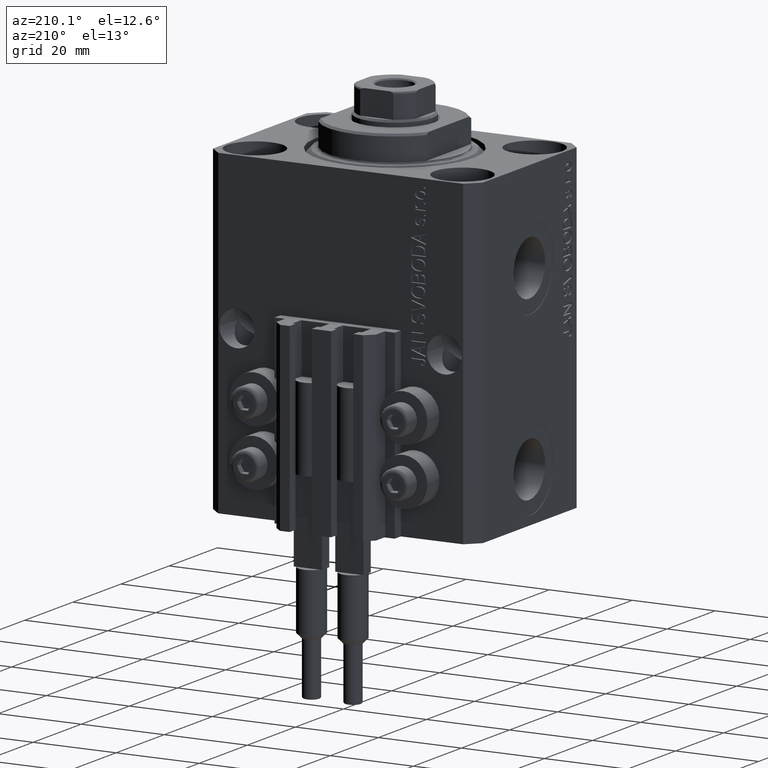
[diagram: clean part render]
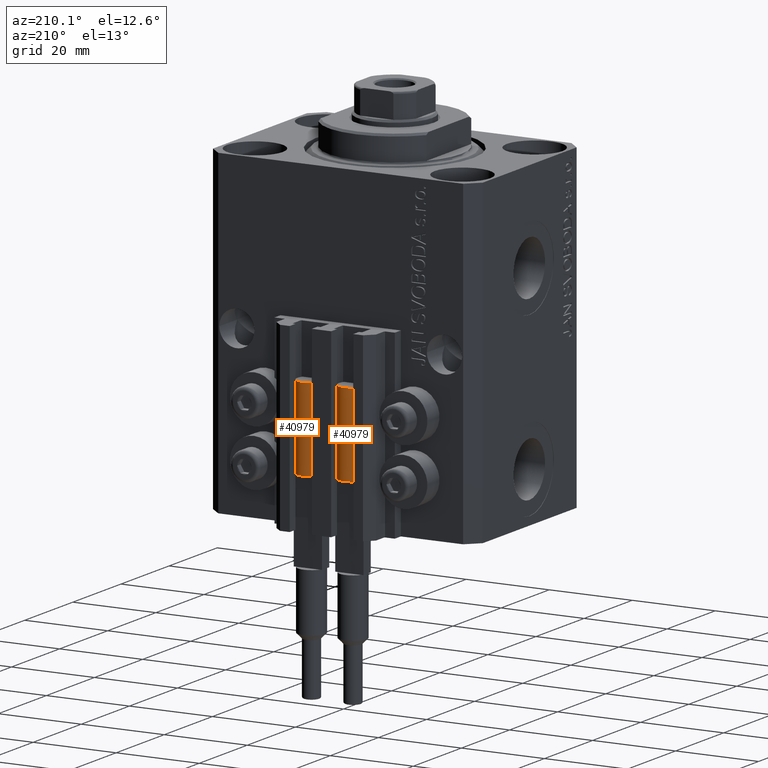
[diagram: same view with one multi-face feature highlighted, each face labeled with its STEP entity id]
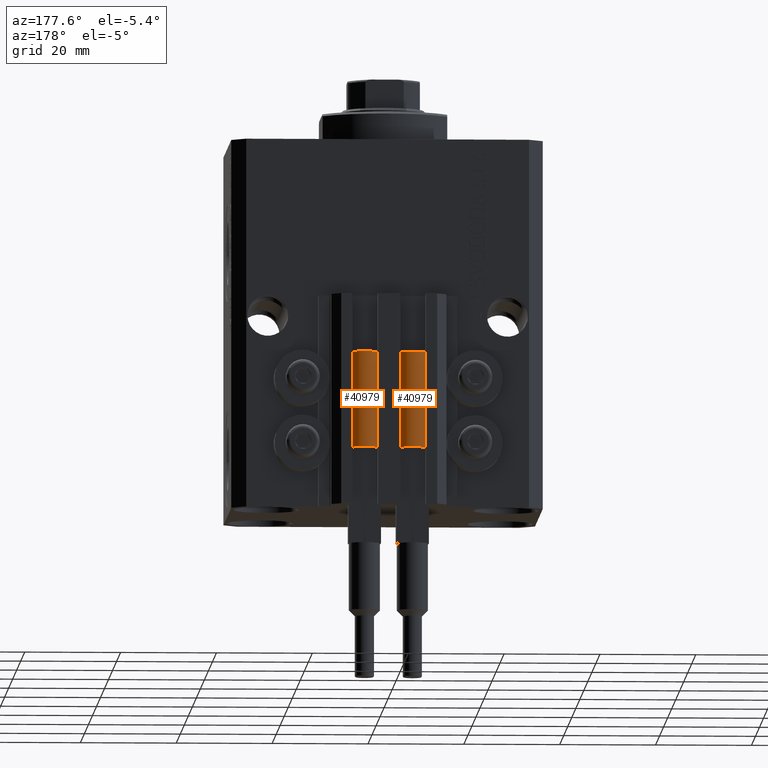
[diagram: same view with one multi-face feature highlighted, each face labeled with its STEP entity id]
A machine part, auxiliary view. The highlighted faces form ONE feature: a constant-radius fillet chain: 2 tangent blend faces with common blend radius 3.4 mm. The faces share edges in the B-rep.
A second angle (auxiliary view) of the same feature is appended — it is thin or edge-on in the first view.
Their STEP definitions:
[1] entity #40979 (Cylinder):
#2190 = VERTEX_POINT ( 'NONE', #8653 ) ;
#3222 = DIRECTION ( 'NONE',  ( 0.000000000000000000, 0.000000000000000000, 1.000000000000000000 ) ) ;
#3467 = DIRECTION ( 'NONE',  ( 0.000000000000000000, 0.000000000000000000, 1.000000000000000000 ) ) ;
#3473 = AXIS2_PLACEMENT_3D ( 'NONE', #17944, #3222, #21880 ) ;
#4143 = VERTEX_POINT ( 'NONE', #38916 ) ;
#5009 = VERTEX_POINT ( 'NONE', #40591 ) ;
#5859 = CIRCLE ( 'NONE', #9740, 3.400000000000000355 ) ;
#6255 = EDGE_CURVE ( 'NONE', #21009, #2190, #31726, .T. ) ;
#6770 = EDGE_CURVE ( 'NONE', #4143, #5009, #5859, .T. ) ;
#6857 = DIRECTION ( 'NONE',  ( -0.000000000000000000, -0.000000000000000000, -1.000000000000000000 ) ) ;
#7351 = AXIS2_PLACEMENT_3D ( 'NONE', #9520, #28652, #21289 ) ;
#7650 = CARTESIAN_POINT ( 'NONE',  ( 0.000000000000000000, 0.000000000000000000, 20.00000000000000000 ) ) ;
#8370 = AXIS2_PLACEMENT_3D ( 'NONE', #36053, #6857, #48062 ) ;
#8498 = DIRECTION ( 'NONE',  ( 1.000000000000000000, 0.000000000000000000, 0.000000000000000000 ) ) ;
#8653 = CARTESIAN_POINT ( 'NONE',  ( 3.051229260478471428, 1.500000000000000000, 20.00000000000000000 ) ) ;
#9520 = CARTESIAN_POINT ( 'NONE',  ( 0.000000000000000000, 0.000000000000000000, 0.000000000000000000 ) ) ;
#9740 = AXIS2_PLACEMENT_3D ( 'NONE', #48492, #44817, #8498 ) ;
#10287 = CYLINDRICAL_SURFACE ( 'NONE', #8370, 3.400000000000000355 ) ;
#10390 = AXIS2_PLACEMENT_3D ( 'NONE', #7650, #3467, #40779 ) ;
#10589 = CARTESIAN_POINT ( 'NONE',  ( 3.400000000000000355, 4.163799117101001052E-16, 20.00000000000000000 ) ) ;
#10601 = CARTESIAN_POINT ( 'NONE',  ( 3.400000000000000355, 4.163799117101001052E-16, 0.000000000000000000 ) ) ;
#11404 = CARTESIAN_POINT ( 'NONE',  ( -3.400000000000000355, 0.000000000000000000, 0.000000000000000000 ) ) ;
#11483 = CARTESIAN_POINT ( 'NONE',  ( 3.400000000000000355, 0.000000000000000000, 20.00000000000000000 ) ) ;
#12240 = ORIENTED_EDGE ( 'NONE', *, *, #6255, .F. ) ;
#12619 = ORIENTED_EDGE ( 'NONE', *, *, #27440, .T. ) ;
#14257 = DIRECTION ( 'NONE',  ( -0.000000000000000000, -0.000000000000000000, -1.000000000000000000 ) ) ;
#14377 = VECTOR ( 'NONE', #26679, 1000.000000000000000 ) ;
#16109 = LINE ( 'NONE', #41898, #14377 ) ;
#17944 = CARTESIAN_POINT ( 'NONE',  ( 0.000000000000000000, 0.000000000000000000, 20.00000000000000000 ) ) ;
#18641 = ORIENTED_EDGE ( 'NONE', *, *, #27487, .F. ) ;
#19776 = CIRCLE ( 'NONE', #7351, 3.400000000000000355 ) ;
#21009 = VERTEX_POINT ( 'NONE', #11483 ) ;
#21289 = DIRECTION ( 'NONE',  ( 1.000000000000000000, 0.000000000000000000, 0.000000000000000000 ) ) ;
#21880 = DIRECTION ( 'NONE',  ( 1.000000000000000000, 0.000000000000000000, 0.000000000000000000 ) ) ;
#26679 = DIRECTION ( 'NONE',  ( -0.000000000000000000, -0.000000000000000000, -1.000000000000000000 ) ) ;
#27440 = EDGE_CURVE ( 'NONE', #21009, #44436, #47876, .T. ) ;
#27487 = EDGE_CURVE ( 'NONE', #2190, #4143, #44869, .T. ) ;
#28652 = DIRECTION ( 'NONE',  ( 0.000000000000000000, 0.000000000000000000, 1.000000000000000000 ) ) ;
#28797 = ORIENTED_EDGE ( 'NONE', *, *, #48420, .T. ) ;
#31726 = CIRCLE ( 'NONE', #3473, 3.400000000000000355 ) ;
#32315 = VECTOR ( 'NONE', #14257, 1000.000000000000000 ) ;
#33749 = VERTEX_POINT ( 'NONE', #11404 ) ;
#34422 = EDGE_LOOP ( 'NONE', ( #12240, #12619, #28797, #40021, #46804, #18641 ) ) ;
#36053 = CARTESIAN_POINT ( 'NONE',  ( 0.000000000000000000, 0.000000000000000000, 20.00000000000000000 ) ) ;
#38916 = CARTESIAN_POINT ( 'NONE',  ( -3.051229260478471428, 1.500000000000000000, 20.00000000000000000 ) ) ;
#40021 = ORIENTED_EDGE ( 'NONE', *, *, #48528, .F. ) ;
#40487 = FACE_OUTER_BOUND ( 'NONE', #34422, .T. ) ;
#40591 = CARTESIAN_POINT ( 'NONE',  ( -3.399999999999999467, -4.915049848600952119E-16, 20.00000000000000000 ) ) ;
#40779 = DIRECTION ( 'NONE',  ( 1.000000000000000000, 0.000000000000000000, 0.000000000000000000 ) ) ;
#40979 = ADVANCED_FACE ( 'NONE', ( #40487 ), #10287, .T. ) ;
#41898 = CARTESIAN_POINT ( 'NONE',  ( -3.400000000000000355, 0.000000000000000000, 20.00000000000000000 ) ) ;
#44436 = VERTEX_POINT ( 'NONE', #10601 ) ;
#44817 = DIRECTION ( 'NONE',  ( 0.000000000000000000, 0.000000000000000000, 1.000000000000000000 ) ) ;
#44869 = CIRCLE ( 'NONE', #10390, 3.400000000000000355 ) ;
#46804 = ORIENTED_EDGE ( 'NONE', *, *, #6770, .F. ) ;
#47876 = LINE ( 'NONE', #10589, #32315 ) ;
#48062 = DIRECTION ( 'NONE',  ( -1.000000000000000000, 0.000000000000000000, 0.000000000000000000 ) ) ;
#48420 = EDGE_CURVE ( 'NONE', #44436, #33749, #19776, .T. ) ;
#48492 = CARTESIAN_POINT ( 'NONE',  ( 0.000000000000000000, 0.000000000000000000, 20.00000000000000000 ) ) ;
#48528 = EDGE_CURVE ( 'NONE', #5009, #33749, #16109, .T. ) ;
[2] entity #40979 (Cylinder):
#2190 = VERTEX_POINT ( 'NONE', #8653 ) ;
#3222 = DIRECTION ( 'NONE',  ( 0.000000000000000000, 0.000000000000000000, 1.000000000000000000 ) ) ;
#3467 = DIRECTION ( 'NONE',  ( 0.000000000000000000, 0.000000000000000000, 1.000000000000000000 ) ) ;
#3473 = AXIS2_PLACEMENT_3D ( 'NONE', #17944, #3222, #21880 ) ;
#4143 = VERTEX_POINT ( 'NONE', #38916 ) ;
#5009 = VERTEX_POINT ( 'NONE', #40591 ) ;
#5859 = CIRCLE ( 'NONE', #9740, 3.400000000000000355 ) ;
#6255 = EDGE_CURVE ( 'NONE', #21009, #2190, #31726, .T. ) ;
#6770 = EDGE_CURVE ( 'NONE', #4143, #5009, #5859, .T. ) ;
#6857 = DIRECTION ( 'NONE',  ( -0.000000000000000000, -0.000000000000000000, -1.000000000000000000 ) ) ;
#7351 = AXIS2_PLACEMENT_3D ( 'NONE', #9520, #28652, #21289 ) ;
#7650 = CARTESIAN_POINT ( 'NONE',  ( 0.000000000000000000, 0.000000000000000000, 20.00000000000000000 ) ) ;
#8370 = AXIS2_PLACEMENT_3D ( 'NONE', #36053, #6857, #48062 ) ;
#8498 = DIRECTION ( 'NONE',  ( 1.000000000000000000, 0.000000000000000000, 0.000000000000000000 ) ) ;
#8653 = CARTESIAN_POINT ( 'NONE',  ( 3.051229260478471428, 1.500000000000000000, 20.00000000000000000 ) ) ;
#9520 = CARTESIAN_POINT ( 'NONE',  ( 0.000000000000000000, 0.000000000000000000, 0.000000000000000000 ) ) ;
#9740 = AXIS2_PLACEMENT_3D ( 'NONE', #48492, #44817, #8498 ) ;
#10287 = CYLINDRICAL_SURFACE ( 'NONE', #8370, 3.400000000000000355 ) ;
#10390 = AXIS2_PLACEMENT_3D ( 'NONE', #7650, #3467, #40779 ) ;
#10589 = CARTESIAN_POINT ( 'NONE',  ( 3.400000000000000355, 4.163799117101001052E-16, 20.00000000000000000 ) ) ;
#10601 = CARTESIAN_POINT ( 'NONE',  ( 3.400000000000000355, 4.163799117101001052E-16, 0.000000000000000000 ) ) ;
#11404 = CARTESIAN_POINT ( 'NONE',  ( -3.400000000000000355, 0.000000000000000000, 0.000000000000000000 ) ) ;
#11483 = CARTESIAN_POINT ( 'NONE',  ( 3.400000000000000355, 0.000000000000000000, 20.00000000000000000 ) ) ;
#12240 = ORIENTED_EDGE ( 'NONE', *, *, #6255, .F. ) ;
#12619 = ORIENTED_EDGE ( 'NONE', *, *, #27440, .T. ) ;
#14257 = DIRECTION ( 'NONE',  ( -0.000000000000000000, -0.000000000000000000, -1.000000000000000000 ) ) ;
#14377 = VECTOR ( 'NONE', #26679, 1000.000000000000000 ) ;
#16109 = LINE ( 'NONE', #41898, #14377 ) ;
#17944 = CARTESIAN_POINT ( 'NONE',  ( 0.000000000000000000, 0.000000000000000000, 20.00000000000000000 ) ) ;
#18641 = ORIENTED_EDGE ( 'NONE', *, *, #27487, .F. ) ;
#19776 = CIRCLE ( 'NONE', #7351, 3.400000000000000355 ) ;
#21009 = VERTEX_POINT ( 'NONE', #11483 ) ;
#21289 = DIRECTION ( 'NONE',  ( 1.000000000000000000, 0.000000000000000000, 0.000000000000000000 ) ) ;
#21880 = DIRECTION ( 'NONE',  ( 1.000000000000000000, 0.000000000000000000, 0.000000000000000000 ) ) ;
#26679 = DIRECTION ( 'NONE',  ( -0.000000000000000000, -0.000000000000000000, -1.000000000000000000 ) ) ;
#27440 = EDGE_CURVE ( 'NONE', #21009, #44436, #47876, .T. ) ;
#27487 = EDGE_CURVE ( 'NONE', #2190, #4143, #44869, .T. ) ;
#28652 = DIRECTION ( 'NONE',  ( 0.000000000000000000, 0.000000000000000000, 1.000000000000000000 ) ) ;
#28797 = ORIENTED_EDGE ( 'NONE', *, *, #48420, .T. ) ;
#31726 = CIRCLE ( 'NONE', #3473, 3.400000000000000355 ) ;
#32315 = VECTOR ( 'NONE', #14257, 1000.000000000000000 ) ;
#33749 = VERTEX_POINT ( 'NONE', #11404 ) ;
#34422 = EDGE_LOOP ( 'NONE', ( #12240, #12619, #28797, #40021, #46804, #18641 ) ) ;
#36053 = CARTESIAN_POINT ( 'NONE',  ( 0.000000000000000000, 0.000000000000000000, 20.00000000000000000 ) ) ;
#38916 = CARTESIAN_POINT ( 'NONE',  ( -3.051229260478471428, 1.500000000000000000, 20.00000000000000000 ) ) ;
#40021 = ORIENTED_EDGE ( 'NONE', *, *, #48528, .F. ) ;
#40487 = FACE_OUTER_BOUND ( 'NONE', #34422, .T. ) ;
#40591 = CARTESIAN_POINT ( 'NONE',  ( -3.399999999999999467, -4.915049848600952119E-16, 20.00000000000000000 ) ) ;
#40779 = DIRECTION ( 'NONE',  ( 1.000000000000000000, 0.000000000000000000, 0.000000000000000000 ) ) ;
#40979 = ADVANCED_FACE ( 'NONE', ( #40487 ), #10287, .T. ) ;
#41898 = CARTESIAN_POINT ( 'NONE',  ( -3.400000000000000355, 0.000000000000000000, 20.00000000000000000 ) ) ;
#44436 = VERTEX_POINT ( 'NONE', #10601 ) ;
#44817 = DIRECTION ( 'NONE',  ( 0.000000000000000000, 0.000000000000000000, 1.000000000000000000 ) ) ;
#44869 = CIRCLE ( 'NONE', #10390, 3.400000000000000355 ) ;
#46804 = ORIENTED_EDGE ( 'NONE', *, *, #6770, .F. ) ;
#47876 = LINE ( 'NONE', #10589, #32315 ) ;
#48062 = DIRECTION ( 'NONE',  ( -1.000000000000000000, 0.000000000000000000, 0.000000000000000000 ) ) ;
#48420 = EDGE_CURVE ( 'NONE', #44436, #33749, #19776, .T. ) ;
#48492 = CARTESIAN_POINT ( 'NONE',  ( 0.000000000000000000, 0.000000000000000000, 20.00000000000000000 ) ) ;
#48528 = EDGE_CURVE ( 'NONE', #5009, #33749, #16109, .T. ) ;